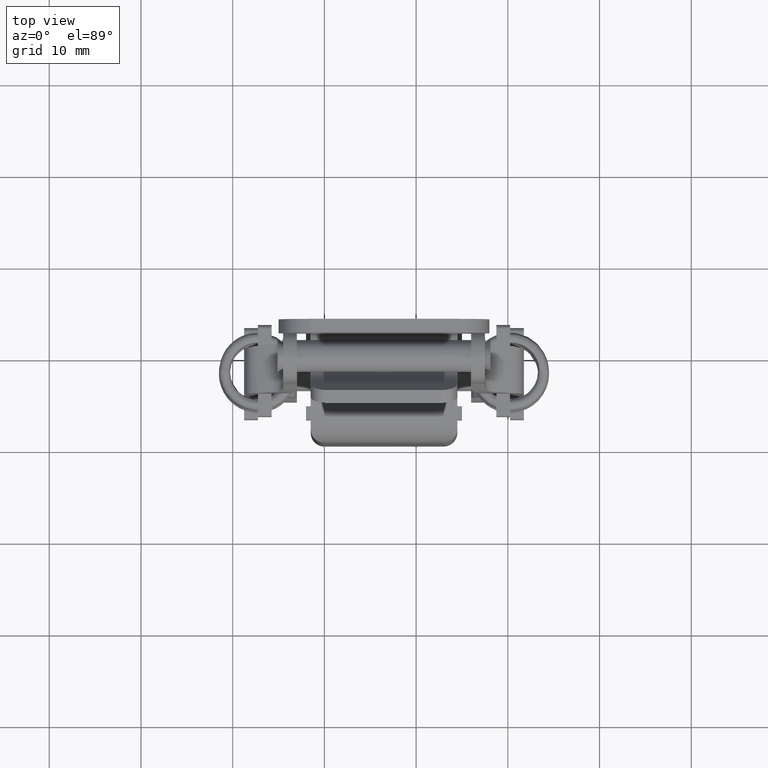
[diagram: clean part render]
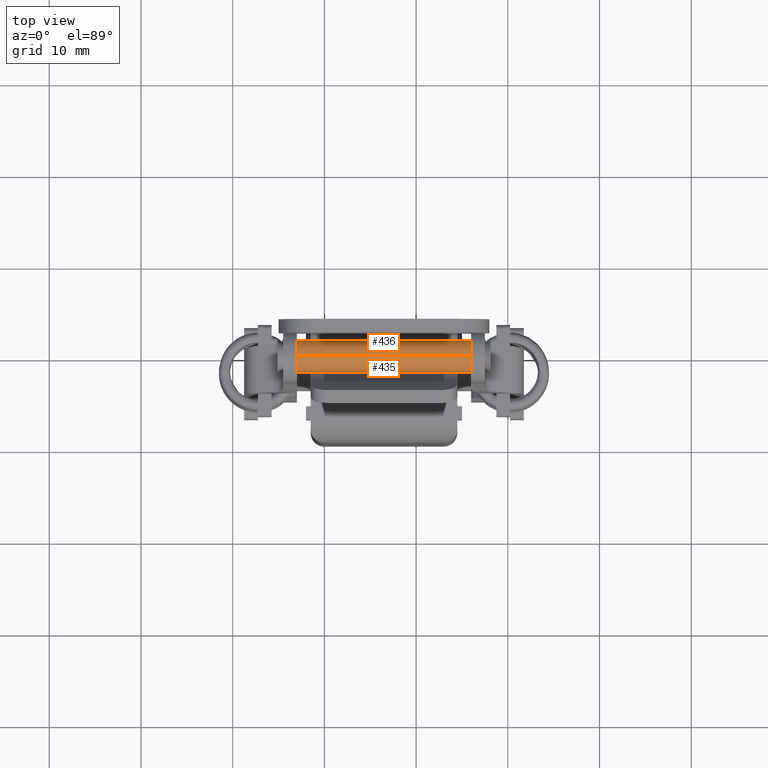
[diagram: same view with one multi-face feature highlighted, each face labeled with its STEP entity id]
A machine part, top view. The highlighted faces form ONE feature: a constant-radius fillet chain: 2 tangent blend faces with common blend radius 1.75 mm. The faces share edges in the B-rep.
Their STEP definitions:
[1] entity #435 (Cylinder):
#435=ADVANCED_FACE('',(#2182),#2181,.T.);
#2181=CYLINDRICAL_SURFACE('',#6126,1.75000000000E+00);
#2182=FACE_OUTER_BOUND('',#6127,.T.);
#6123=CARTESIAN_POINT('',(0.00000000000E+00,0.00000000000E+00,0.00000000000E+00));
#6124=DIRECTION('',(-0.00000000000E+00,1.00000000000E+00,-0.00000000000E+00));
#6125=DIRECTION('',(-0.00000000000E+00,-0.00000000000E+00,1.00000000000E+00));
#6126=AXIS2_PLACEMENT_3D('',#6123,#6124,#6125);
#6127=EDGE_LOOP('',(#7417,#7418,#7419,#7420));
#7417=ORIENTED_EDGE('',*,*,#8245,.T.);
#7418=ORIENTED_EDGE('',*,*,#8269,.F.);
#7419=ORIENTED_EDGE('',*,*,#8195,.F.);
#7420=ORIENTED_EDGE('',*,*,#8270,.T.);
#8195=EDGE_CURVE('',#10987,#10988,#10989,.T.);
#8245=EDGE_CURVE('',#11314,#11313,#11321,.T.);
#8269=EDGE_CURVE('',#10988,#11313,#11477,.T.);
#8270=EDGE_CURVE('',#10987,#11314,#11483,.T.);
#10987=VERTEX_POINT('',#14728);
#10988=VERTEX_POINT('',#14729);
#10989=CIRCLE('',#14733,1.75000000000E+00);
#11313=VERTEX_POINT('',#14925);
#11314=VERTEX_POINT('',#14926);
#11321=CIRCLE('',#14934,1.75000000000E+00);
#11477=(BOUNDED_CURVE() B_SPLINE_CURVE(1,(#15025,#15026),.UNSPECIFIED.,.F.,.F.) B_SPLINE_CURVE_WITH_KNOTS((2,2),(8.33333328360E-02,9.16666665505E-01),.UNSPECIFIED.) CURVE() GEOMETRIC_REPRESENTATION_ITEM() RATIONAL_B_SPLINE_CURVE((1.00000000000E+00,1.00000000000E+00)) REPRESENTATION_ITEM('') );
#11483=(BOUNDED_CURVE() B_SPLINE_CURVE(1,(#15027,#15028),.UNSPECIFIED.,.F.,.F.) B_SPLINE_CURVE_WITH_KNOTS((2,2),(8.33333333333E-02,9.16666666667E-01),.UNSPECIFIED.) CURVE() GEOMETRIC_REPRESENTATION_ITEM() RATIONAL_B_SPLINE_CURVE((7.50000000000E-01,7.50000000000E-01)) REPRESENTATION_ITEM('') );
#14728=CARTESIAN_POINT('',(0.00000000000E+00,2.10000000000E+00,-1.75000000000E+00));
#14729=CARTESIAN_POINT('',(7.40148683083E-17,2.10000000000E+00,1.75000000000E+00));
#14730=CARTESIAN_POINT('',(0.00000000000E+00,2.10000000000E+00,0.00000000000E+00));
#14731=DIRECTION('',(0.00000000000E+00,-1.00000000000E+00,-0.00000000000E+00));
#14732=DIRECTION('',(-1.22460635382E-16,0.00000000000E+00,-1.00000000000E+00));
#14733=AXIS2_PLACEMENT_3D('',#14730,#14731,#14732);
#14925=CARTESIAN_POINT('',(7.40148683083E-17,2.11000000000E+01,1.75000000000E+00));
#14926=CARTESIAN_POINT('',(0.00000000000E+00,2.11000000000E+01,-1.75000000000E+00));
#14931=CARTESIAN_POINT('',(0.00000000000E+00,2.11000000000E+01,0.00000000000E+00));
#14932=DIRECTION('',(0.00000000000E+00,-1.00000000000E+00,-0.00000000000E+00));
#14933=DIRECTION('',(-1.22460635382E-16,0.00000000000E+00,-1.00000000000E+00));
#14934=AXIS2_PLACEMENT_3D('',#14931,#14932,#14933);
#15025=CARTESIAN_POINT('',(0.00000000000E+00,2.09999998866E+00,1.75000000000E+00));
#15026=CARTESIAN_POINT('',(0.00000000000E+00,2.10999999735E+01,1.75000000000E+00));
#15027=CARTESIAN_POINT('',(0.00000000000E+00,2.10000000000E+00,-1.75000000000E+00));
#15028=CARTESIAN_POINT('',(0.00000000000E+00,2.11000000000E+01,-1.75000000000E+00));
[2] entity #436 (Cylinder):
#436=ADVANCED_FACE('',(#2192),#2191,.T.);
#2191=CYLINDRICAL_SURFACE('',#6131,1.75000000000E+00);
#2192=FACE_OUTER_BOUND('',#6132,.T.);
#6128=CARTESIAN_POINT('',(0.00000000000E+00,0.00000000000E+00,0.00000000000E+00));
#6129=DIRECTION('',(-0.00000000000E+00,1.00000000000E+00,-0.00000000000E+00));
#6130=DIRECTION('',(-0.00000000000E+00,-0.00000000000E+00,1.00000000000E+00));
#6131=AXIS2_PLACEMENT_3D('',#6128,#6129,#6130);
#6132=EDGE_LOOP('',(#7421,#7422,#7423,#7424));
#7421=ORIENTED_EDGE('',*,*,#8196,.F.);
#7422=ORIENTED_EDGE('',*,*,#8269,.T.);
#7423=ORIENTED_EDGE('',*,*,#8244,.T.);
#7424=ORIENTED_EDGE('',*,*,#8270,.F.);
#8196=EDGE_CURVE('',#10988,#10987,#10995,.T.);
#8244=EDGE_CURVE('',#11313,#11314,#11315,.T.);
#8269=EDGE_CURVE('',#10988,#11313,#11477,.T.);
#8270=EDGE_CURVE('',#10987,#11314,#11483,.T.);
#10987=VERTEX_POINT('',#14728);
#10988=VERTEX_POINT('',#14729);
#10995=CIRCLE('',#14737,1.75000000000E+00);
#11313=VERTEX_POINT('',#14925);
#11314=VERTEX_POINT('',#14926);
#11315=CIRCLE('',#14930,1.75000000000E+00);
#11477=(BOUNDED_CURVE() B_SPLINE_CURVE(1,(#15025,#15026),.UNSPECIFIED.,.F.,.F.) B_SPLINE_CURVE_WITH_KNOTS((2,2),(8.33333328360E-02,9.16666665505E-01),.UNSPECIFIED.) CURVE() GEOMETRIC_REPRESENTATION_ITEM() RATIONAL_B_SPLINE_CURVE((1.00000000000E+00,1.00000000000E+00)) REPRESENTATION_ITEM('') );
#11483=(BOUNDED_CURVE() B_SPLINE_CURVE(1,(#15027,#15028),.UNSPECIFIED.,.F.,.F.) B_SPLINE_CURVE_WITH_KNOTS((2,2),(8.33333333333E-02,9.16666666667E-01),.UNSPECIFIED.) CURVE() GEOMETRIC_REPRESENTATION_ITEM() RATIONAL_B_SPLINE_CURVE((7.50000000000E-01,7.50000000000E-01)) REPRESENTATION_ITEM('') );
#14728=CARTESIAN_POINT('',(0.00000000000E+00,2.10000000000E+00,-1.75000000000E+00));
#14729=CARTESIAN_POINT('',(7.40148683083E-17,2.10000000000E+00,1.75000000000E+00));
#14734=CARTESIAN_POINT('',(0.00000000000E+00,2.10000000000E+00,0.00000000000E+00));
#14735=DIRECTION('',(0.00000000000E+00,-1.00000000000E+00,-0.00000000000E+00));
#14736=DIRECTION('',(-1.22460635382E-16,0.00000000000E+00,-1.00000000000E+00));
#14737=AXIS2_PLACEMENT_3D('',#14734,#14735,#14736);
#14925=CARTESIAN_POINT('',(7.40148683083E-17,2.11000000000E+01,1.75000000000E+00));
#14926=CARTESIAN_POINT('',(0.00000000000E+00,2.11000000000E+01,-1.75000000000E+00));
#14927=CARTESIAN_POINT('',(0.00000000000E+00,2.11000000000E+01,0.00000000000E+00));
#14928=DIRECTION('',(0.00000000000E+00,-1.00000000000E+00,-0.00000000000E+00));
#14929=DIRECTION('',(-1.22460635382E-16,0.00000000000E+00,-1.00000000000E+00));
#14930=AXIS2_PLACEMENT_3D('',#14927,#14928,#14929);
#15025=CARTESIAN_POINT('',(0.00000000000E+00,2.09999998866E+00,1.75000000000E+00));
#15026=CARTESIAN_POINT('',(0.00000000000E+00,2.10999999735E+01,1.75000000000E+00));
#15027=CARTESIAN_POINT('',(0.00000000000E+00,2.10000000000E+00,-1.75000000000E+00));
#15028=CARTESIAN_POINT('',(0.00000000000E+00,2.11000000000E+01,-1.75000000000E+00));